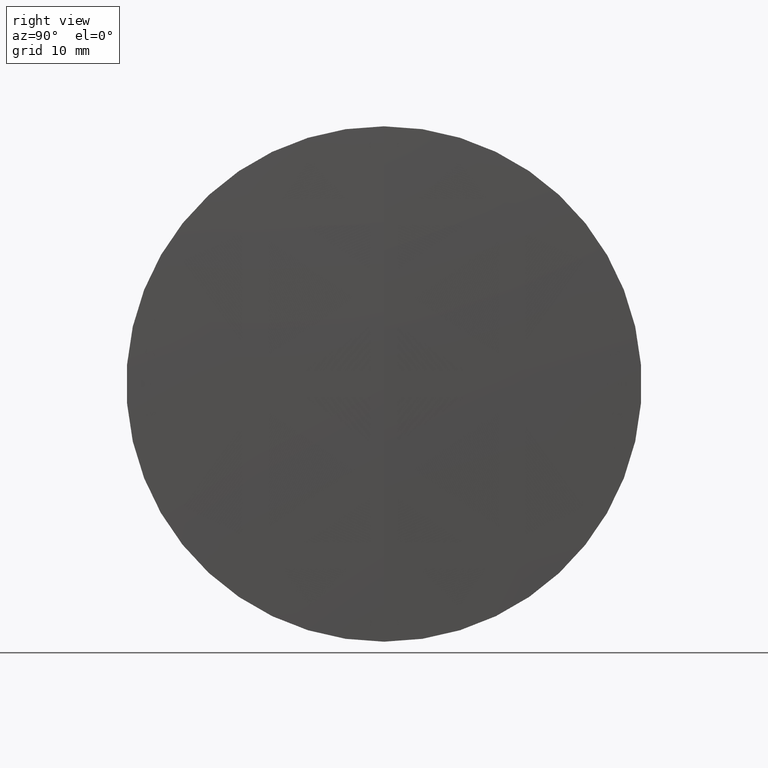
[diagram: clean part render]
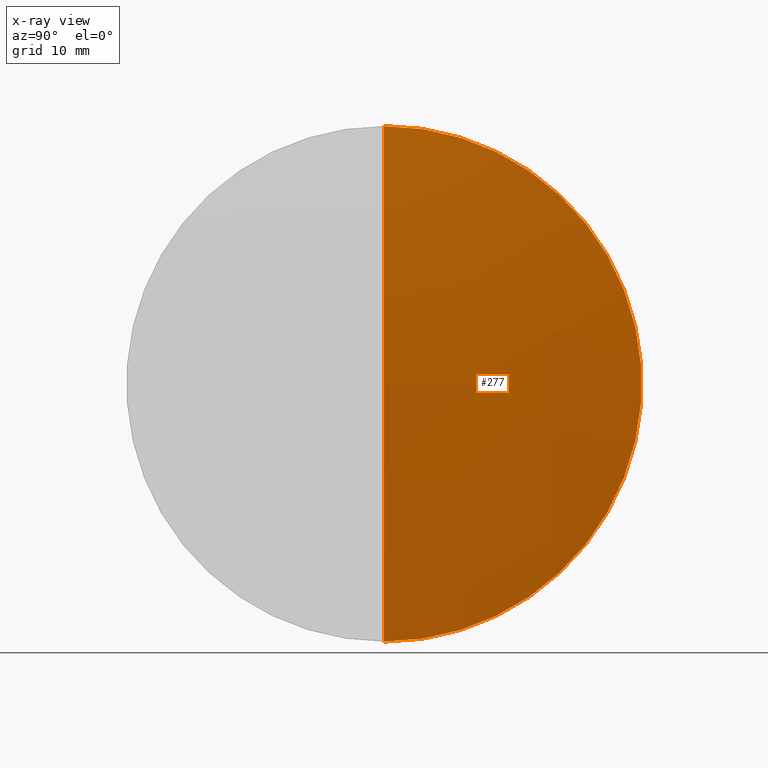
[diagram: x-ray — body ghosted, one internal face saturated and labeled with its STEP entity id]
A machine part, right view, then the same camera in x-ray: the body is ghosted and one INTERNAL B-rep face — a face not visible from any outside direction — is saturated and labeled: STEP entity #277.
In plain terms, the highlighted spherical surface has radius 208 mm.
Its self-contained STEP definition (entity closure, byte-faithful):
#42 = CIRCLE ( 'NONE', #206, 208.0000000000000600 ) ;
#72 = DIRECTION ( 'NONE',  ( 0.0000000000000000000, 0.0000000000000000000, 1.000000000000000000 ) ) ;
#81 = ORIENTED_EDGE ( 'NONE', *, *, #179, .F. ) ;
#91 = AXIS2_PLACEMENT_3D ( 'NONE', #150, #128, #257 ) ;
#103 = CARTESIAN_POINT ( 'NONE',  ( 457.7805592743230200, 0.0000000000000000000, -6.453996819439198100E-015 ) ) ;
#104 = VERTEX_POINT ( 'NONE', #234 ) ;
#106 = CIRCLE ( 'NONE', #91, 25.39999999999999500 ) ;
#116 = EDGE_LOOP ( 'NONE', ( #138, #209, #81 ) ) ;
#128 = DIRECTION ( 'NONE',  ( -1.000000000000000000, -0.0000000000000000000, -0.0000000000000000000 ) ) ;
#131 = VERTEX_POINT ( 'NONE', #144 ) ;
#138 = ORIENTED_EDGE ( 'NONE', *, *, #219, .F. ) ;
#144 = CARTESIAN_POINT ( 'NONE',  ( 664.2238686839525600, 3.110602869834276500E-015, -25.39999999999999500 ) ) ;
#150 = CARTESIAN_POINT ( 'NONE',  ( 664.2238686839525600, 0.0000000000000000000, 0.0000000000000000000 ) ) ;
#167 = CARTESIAN_POINT ( 'NONE',  ( 457.7805592743230200, 0.0000000000000000000, -6.453996819439198100E-015 ) ) ;
#179 = EDGE_CURVE ( 'NONE', #216, #131, #106, .T. ) ;
#190 = DIRECTION ( 'NONE',  ( 0.0000000000000000000, 1.000000000000000000, 0.0000000000000000000 ) ) ;
#206 = AXIS2_PLACEMENT_3D ( 'NONE', #167, #300, #215 ) ;
#209 = ORIENTED_EDGE ( 'NONE', *, *, #346, .T. ) ;
#215 = DIRECTION ( 'NONE',  ( 0.0000000000000000000, -1.224646799147353200E-016, 1.000000000000000000 ) ) ;
#216 = VERTEX_POINT ( 'NONE', #258 ) ;
#219 = EDGE_CURVE ( 'NONE', #104, #216, #243, .T. ) ;
#223 = FACE_OUTER_BOUND ( 'NONE', #116, .T. ) ;
#233 = AXIS2_PLACEMENT_3D ( 'NONE', #317, #190, #72 ) ;
#234 = CARTESIAN_POINT ( 'NONE',  ( 665.7805592743230800, 0.0000000000000000000, 6.282329891693277800E-015 ) ) ;
#243 = CIRCLE ( 'NONE', #304, 208.0000000000000600 ) ;
#246 = SPHERICAL_SURFACE ( 'NONE', #233, 208.0000000000000600 ) ;
#257 = DIRECTION ( 'NONE',  ( 0.0000000000000000000, 0.0000000000000000000, 1.000000000000000000 ) ) ;
#258 = CARTESIAN_POINT ( 'NONE',  ( 664.2238686839525600, 0.0000000000000000000, 25.39999999999999500 ) ) ;
#277 = ADVANCED_FACE ( 'NONE', ( #223 ), #246, .T. ) ;
#293 = DIRECTION ( 'NONE',  ( 0.0000000000000000000, -1.000000000000000000, 0.0000000000000000000 ) ) ;
#300 = DIRECTION ( 'NONE',  ( -0.0000000000000000000, 1.000000000000000000, 1.224646799147353200E-016 ) ) ;
#304 = AXIS2_PLACEMENT_3D ( 'NONE', #103, #293, #331 ) ;
#317 = CARTESIAN_POINT ( 'NONE',  ( 457.7805592743230200, 0.0000000000000000000, -6.453996819439198100E-015 ) ) ;
#331 = DIRECTION ( 'NONE',  ( 0.0000000000000000000, 0.0000000000000000000, -1.000000000000000000 ) ) ;
#346 = EDGE_CURVE ( 'NONE', #104, #131, #42, .T. ) ;